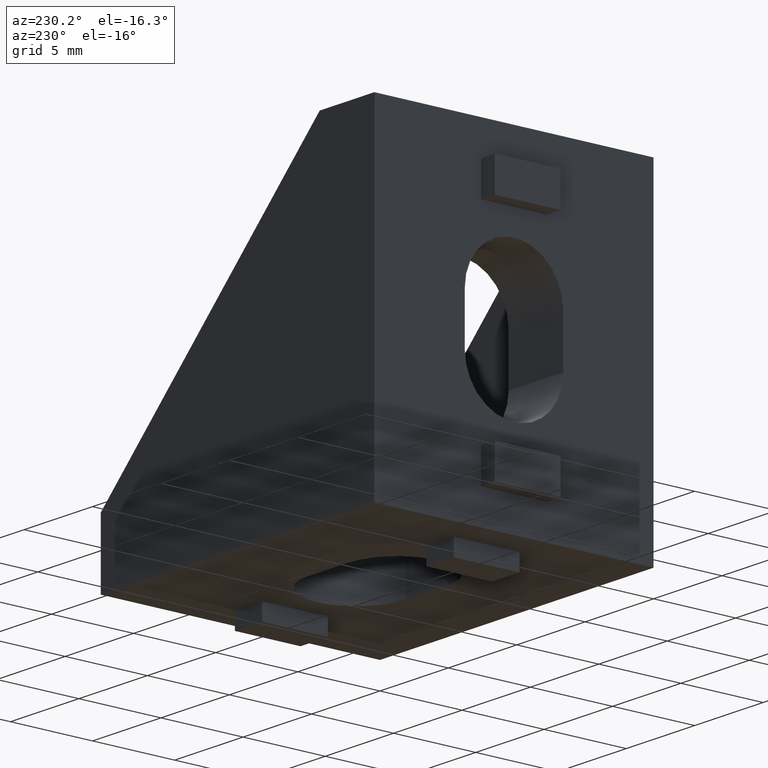
[diagram: clean part render]
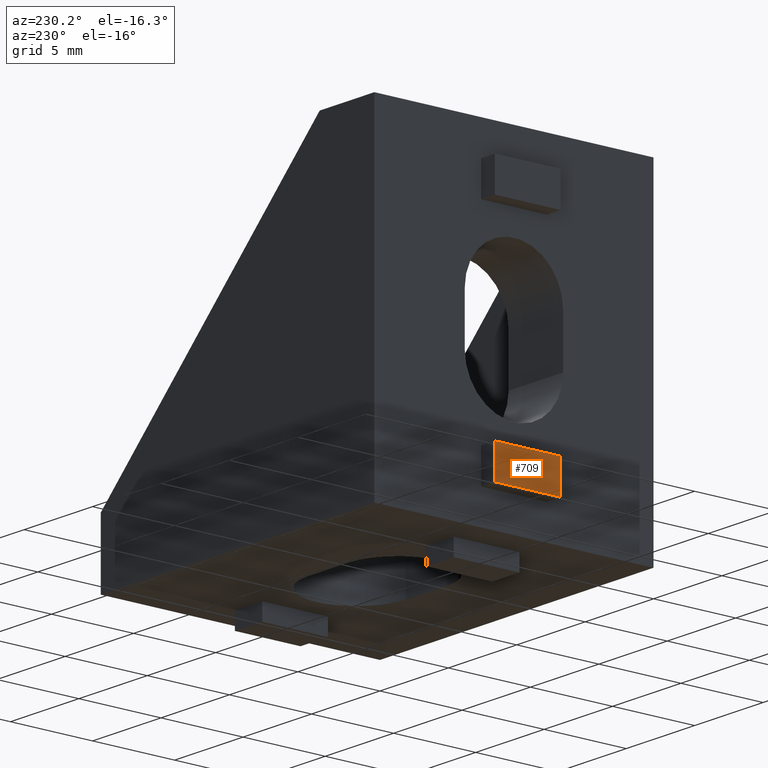
[diagram: same view with one face highlighted and labeled with its STEP entity id]
A machine part, auxiliary view. The second image highlights one B-rep face of the part: STEP entity #709.
In plain terms, the highlighted planar face has unit normal (-1, 0, 0).
Its self-contained STEP definition (entity closure, byte-faithful):
#47=FACE_OUTER_BOUND('',#87,.T.);
#87=EDGE_LOOP('',(#513,#514,#515,#516));
#148=LINE('',#1043,#238);
#154=LINE('',#1055,#244);
#155=LINE('',#1057,#245);
#156=LINE('',#1058,#246);
#238=VECTOR('',#848,10.);
#244=VECTOR('',#856,10.);
#245=VECTOR('',#859,10.);
#246=VECTOR('',#860,10.);
#319=VERTEX_POINT('',#1039);
#321=VERTEX_POINT('',#1042);
#324=VERTEX_POINT('',#1049);
#326=VERTEX_POINT('',#1053);
#392=EDGE_CURVE('',#319,#321,#148,.T.);
#398=EDGE_CURVE('',#324,#326,#154,.T.);
#399=EDGE_CURVE('',#324,#319,#155,.T.);
#400=EDGE_CURVE('',#321,#326,#156,.T.);
#513=ORIENTED_EDGE('',*,*,#399,.F.);
#514=ORIENTED_EDGE('',*,*,#398,.T.);
#515=ORIENTED_EDGE('',*,*,#400,.F.);
#516=ORIENTED_EDGE('',*,*,#392,.F.);
#673=PLANE('',#763);
#709=ADVANCED_FACE('',(#47),#673,.T.);
#763=AXIS2_PLACEMENT_3D('',#1056,#857,#858);
#848=DIRECTION('',(0.,0.,-1.));
#856=DIRECTION('',(0.,0.,-1.));
#857=DIRECTION('center_axis',(-1.,0.,0.));
#858=DIRECTION('ref_axis',(0.,1.,0.));
#859=DIRECTION('',(0.,-1.,0.));
#860=DIRECTION('',(0.,1.,0.));
#1039=CARTESIAN_POINT('',(-1.,6.5,4.));
#1042=CARTESIAN_POINT('',(-1.,6.5,2.));
#1043=CARTESIAN_POINT('',(-1.,6.5,4.));
#1049=CARTESIAN_POINT('',(-1.,10.5,4.));
#1053=CARTESIAN_POINT('',(-1.,10.5,2.));
#1055=CARTESIAN_POINT('',(-1.,10.5,4.));
#1056=CARTESIAN_POINT('Origin',(-1.,6.5,4.));
#1057=CARTESIAN_POINT('',(-1.,10.5,4.));
#1058=CARTESIAN_POINT('',(-1.,10.5,2.));